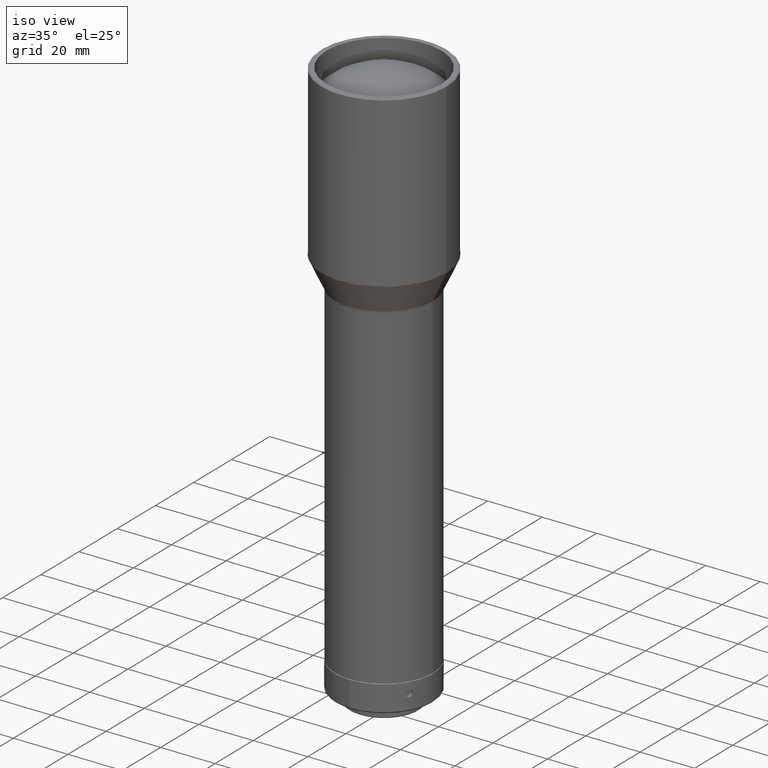
[diagram: clean part render]
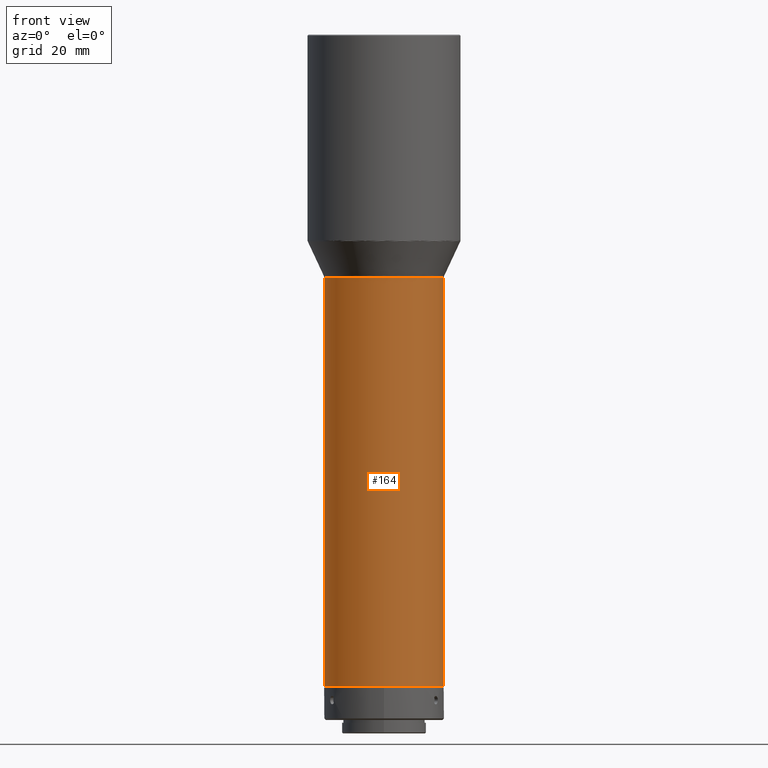
[diagram: tour spotlight — one face highlighted and labeled with its STEP entity id]
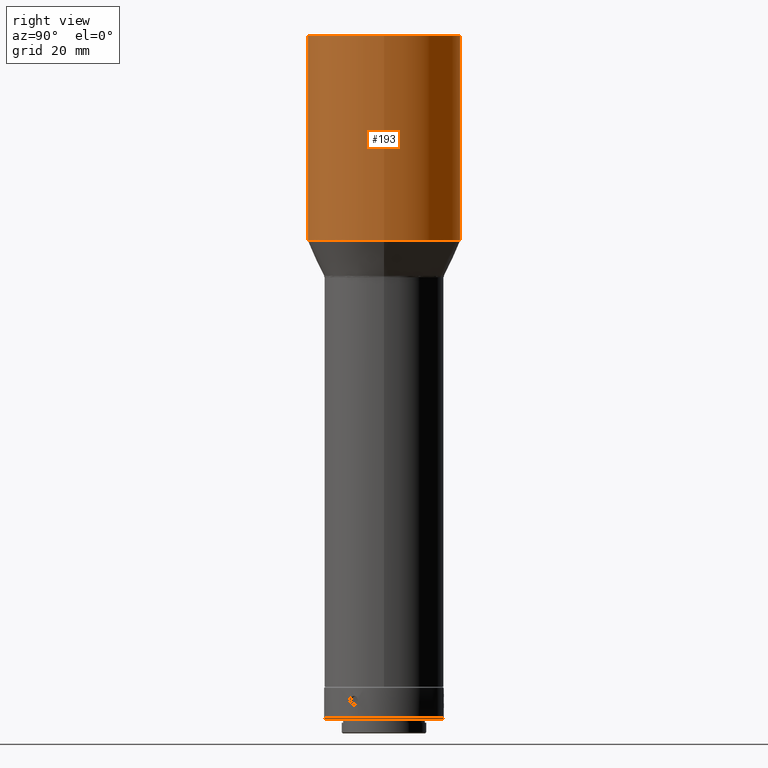
[diagram: tour spotlight — one face highlighted and labeled with its STEP entity id]
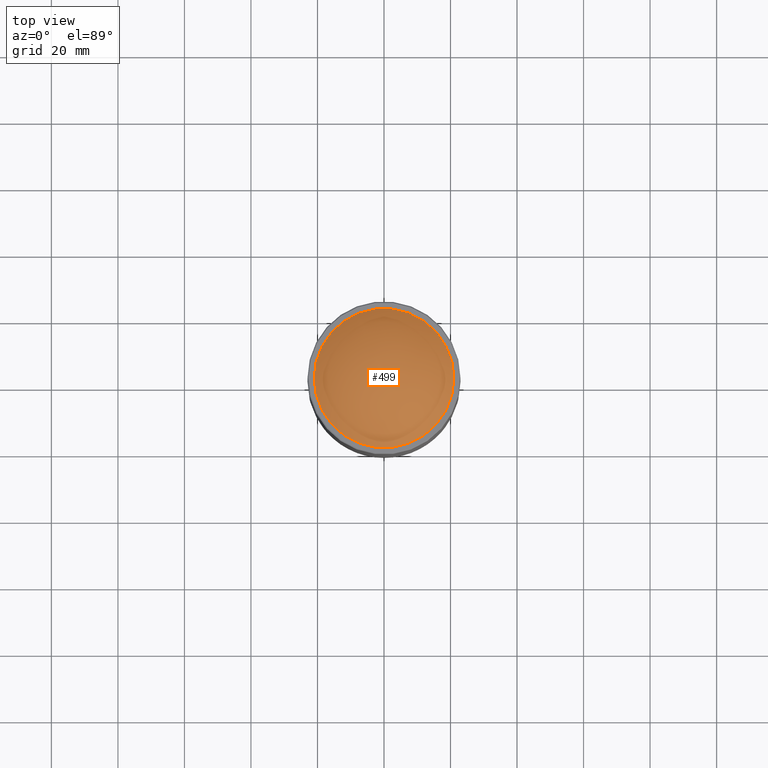
[diagram: tour spotlight — one face highlighted and labeled with its STEP entity id]
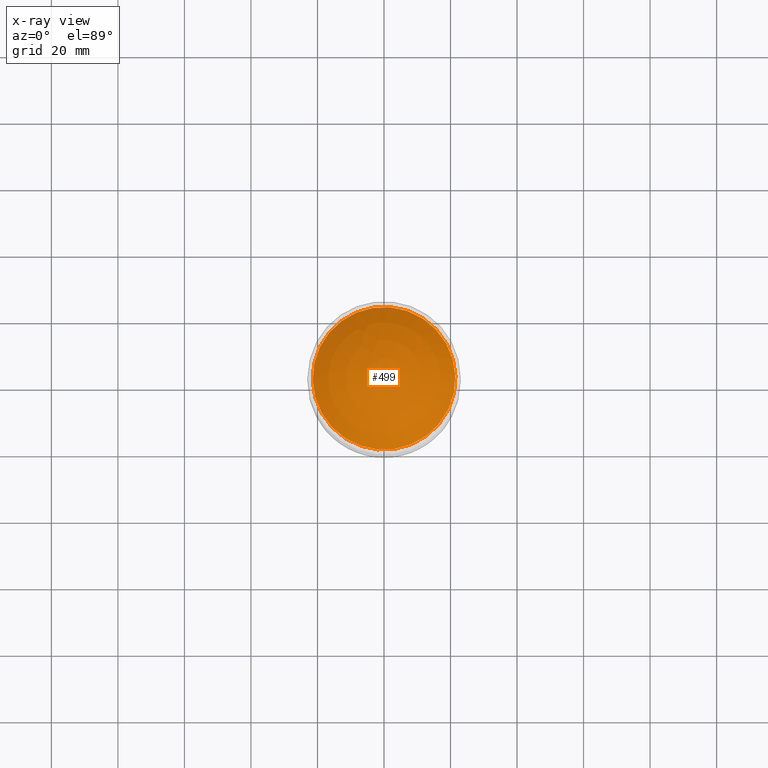
[diagram: x-ray of the same camera — body ghosted, this tour face saturated]
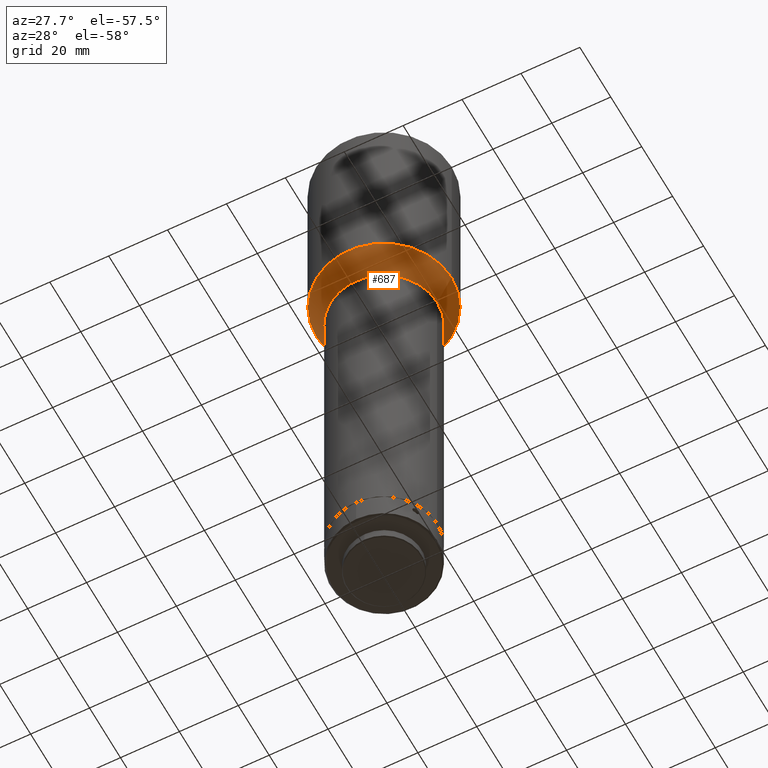
[diagram: tour spotlight — one face highlighted and labeled with its STEP entity id]
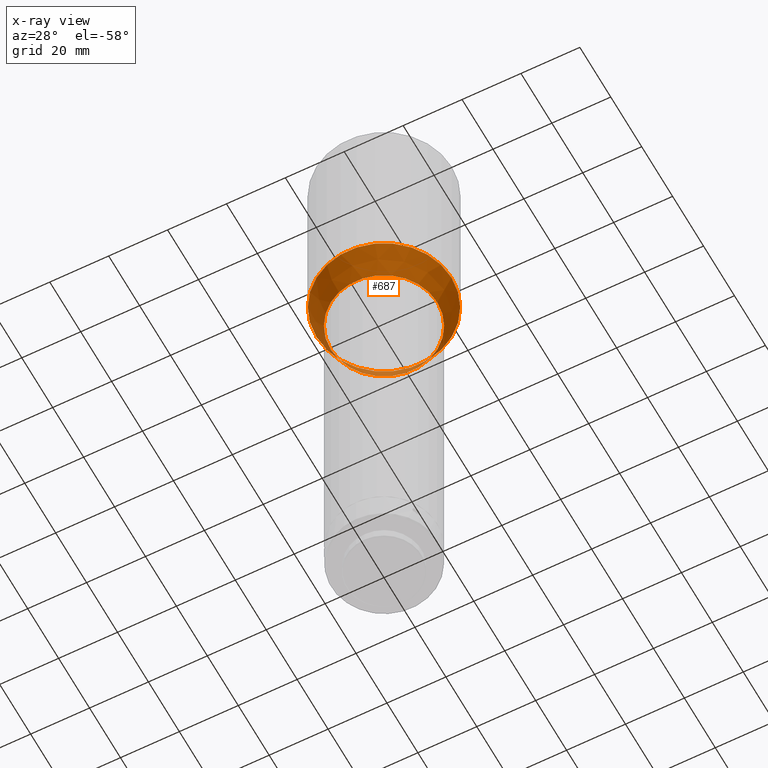
[diagram: x-ray of the same camera — body ghosted, this tour face saturated]
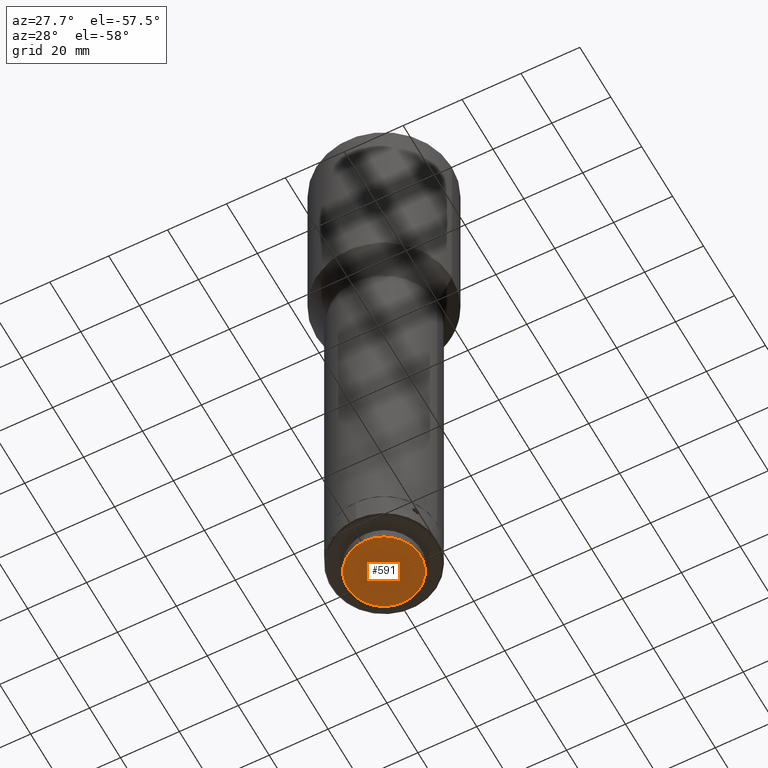
[diagram: tour spotlight — one face highlighted and labeled with its STEP entity id]
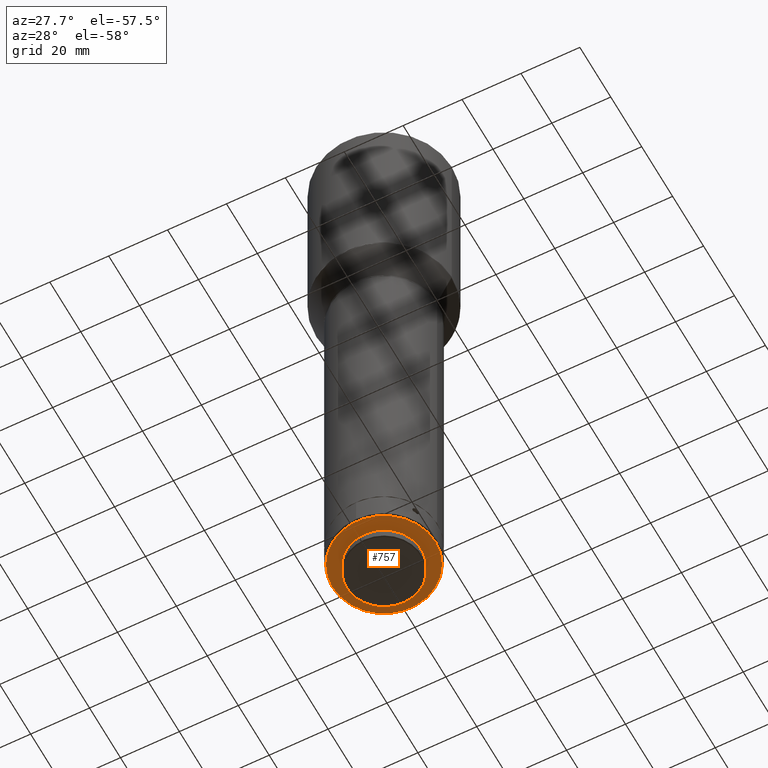
[diagram: tour spotlight — one face highlighted and labeled with its STEP entity id]
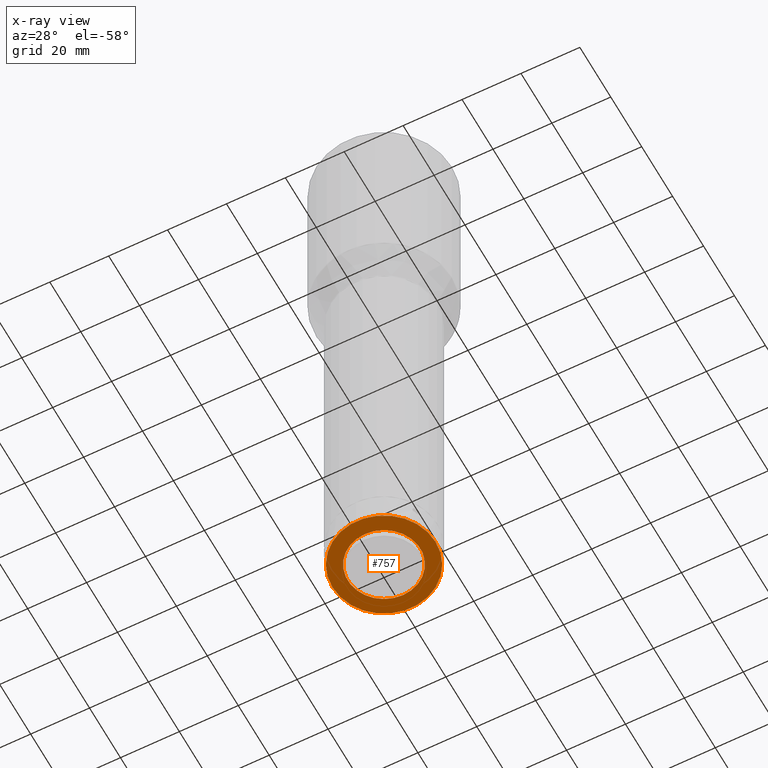
[diagram: x-ray of the same camera — body ghosted, this tour face saturated]
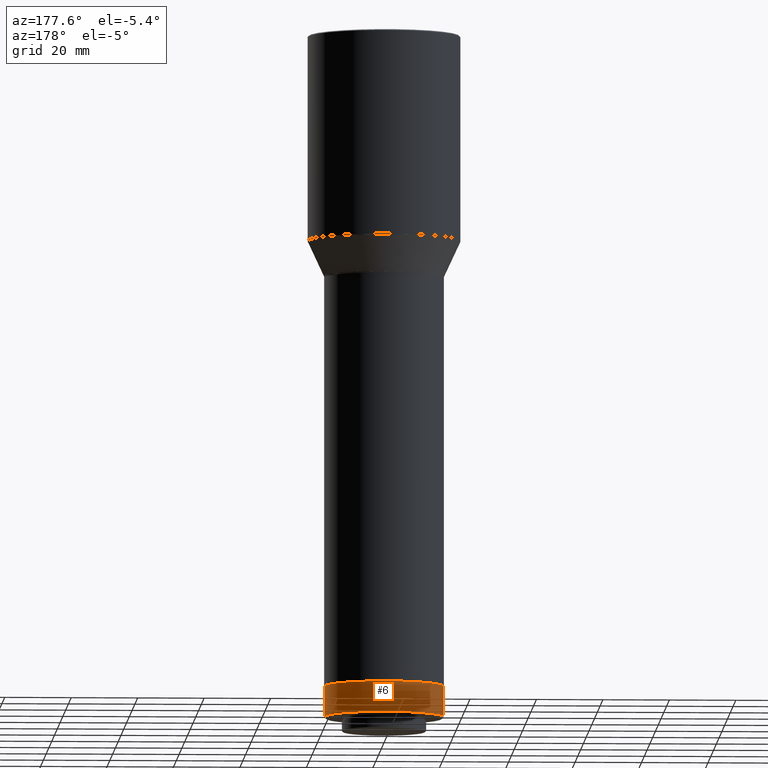
[diagram: tour spotlight — one face highlighted and labeled with its STEP entity id]
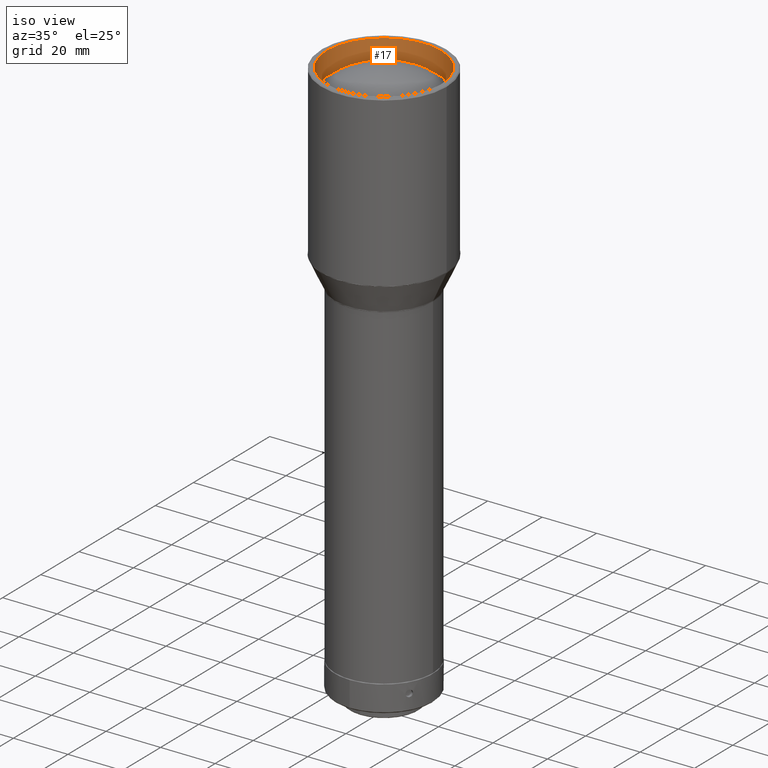
[diagram: tour spotlight — one face highlighted and labeled with its STEP entity id]
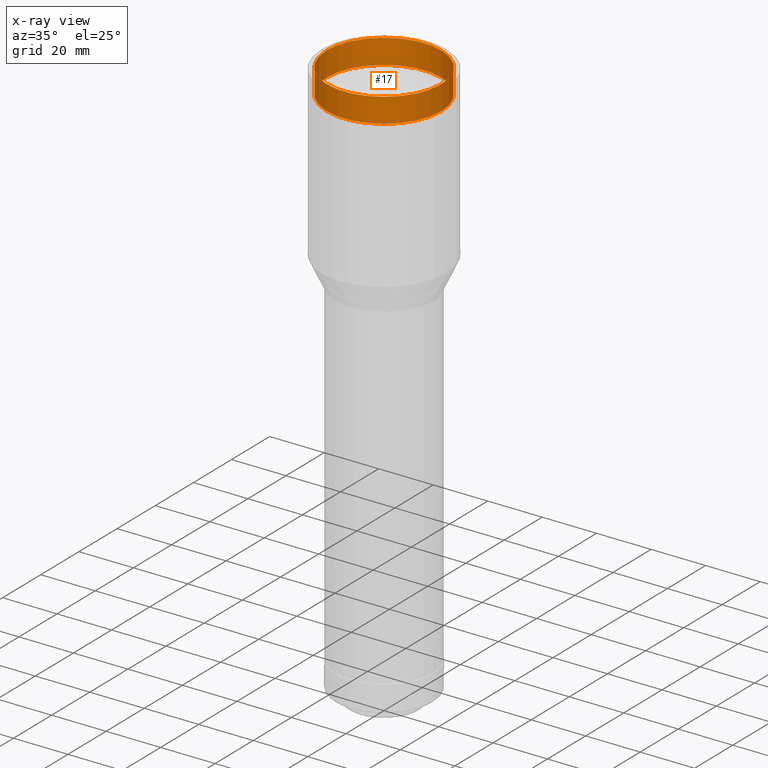
[diagram: x-ray of the same camera — body ghosted, this tour face saturated]
A machine part: a face-by-face anatomy tour. The part has 27 B-rep faces; the first image is the clean iso view, then the 8 largest visible faces are spotlighted one at a time (largest first), each with its STEP entity span.

Face 1 — front view, entity #164. In plain terms, the highlighted cylindrical surface (bore or boss wall) has radius 18 mm, axis along (0, -0, 1).
Definition (entity closure, byte-faithful):
#33 = CARTESIAN_POINT ( 'NONE',  ( 4.600448513594326693E-15, 2.912732588834946147E-14, -532.0000000000001137 ) ) ;
#39 = EDGE_LOOP ( 'NONE', ( #621 ) ) ;
#59 = EDGE_LOOP ( 'NONE', ( #551 ) ) ;
#63 = CARTESIAN_POINT ( 'NONE',  ( 18.00000000000000000, 3.013963042389634666E-14, -604.9442292651910975 ) ) ;
#116 = VERTEX_POINT ( 'NONE', #709 ) ;
#148 = DIRECTION ( 'NONE',  ( 1.110223024625165169E-16, -1.387778780781447216E-17, 1.000000000000000000 ) ) ;
#153 = DIRECTION ( 'NONE',  ( -1.110223024625165169E-16, 1.387778780781447216E-17, -1.000000000000000000 ) ) ;
#164 = ADVANCED_FACE ( 'NONE', ( #554, #616 ), #288, .T. ) ;
#209 = AXIS2_PLACEMENT_3D ( 'NONE', #415, #148, #789 ) ;
#288 = CYLINDRICAL_SURFACE ( 'NONE', #317, 18.00000000000000355 ) ;
#295 = DIRECTION ( 'NONE',  ( 1.000000000000000000, 0.000000000000000000, 0.000000000000000000 ) ) ;
#317 = AXIS2_PLACEMENT_3D ( 'NONE', #33, #565, #295 ) ;
#352 = CIRCLE ( 'NONE', #209, 18.00000000000000355 ) ;
#415 = CARTESIAN_POINT ( 'NONE',  ( -1.716869686162251538E-14, 3.184846906025154484E-14, -728.0790300000001025 ) ) ;
#424 = AXIS2_PLACEMENT_3D ( 'NONE', #475, #153, #606 ) ;
#475 = CARTESIAN_POINT ( 'NONE',  ( -3.497987770780852267E-15, 3.013963042389634666E-14, -604.9442292651910975 ) ) ;
#551 = ORIENTED_EDGE ( 'NONE', *, *, #699, .T. ) ;
#554 = FACE_OUTER_BOUND ( 'NONE', #39, .T. ) ;
#565 = DIRECTION ( 'NONE',  ( 1.110223024625165169E-16, -1.387778780781447216E-17, 1.000000000000000000 ) ) ;
#606 = DIRECTION ( 'NONE',  ( 1.000000000000000000, 0.000000000000000000, 0.000000000000000000 ) ) ;
#616 = FACE_OUTER_BOUND ( 'NONE', #59, .T. ) ;
#621 = ORIENTED_EDGE ( 'NONE', *, *, #656, .T. ) ;
#656 = EDGE_CURVE ( 'NONE', #116, #116, #352, .T. ) ;
#699 = EDGE_CURVE ( 'NONE', #822, #822, #782, .T. ) ;
#709 = CARTESIAN_POINT ( 'NONE',  ( 17.99999999999998579, 3.184846906025154484E-14, -728.0790300000001025 ) ) ;
#782 = CIRCLE ( 'NONE', #424, 18.00000000000000355 ) ;
#789 = DIRECTION ( 'NONE',  ( 1.000000000000000000, 0.000000000000000000, 0.000000000000000000 ) ) ;
#822 = VERTEX_POINT ( 'NONE', #63 ) ;

Face 2 — right view, entity #193. In plain terms, the highlighted cylindrical surface (bore or boss wall) has radius 23 mm, axis along (0, -0, 1).
Definition (entity closure, byte-faithful):
#8 = CIRCLE ( 'NONE', #114, 23.00000000000000000 ) ;
#47 = CARTESIAN_POINT ( 'NONE',  ( -23.00000000000000355, 3.509169801422339781E-14, -593.7783053373572102 ) ) ;
#83 = DIRECTION ( 'NONE',  ( -1.000000000000000000, 2.220446049250315053E-16, 0.000000000000000000 ) ) ;
#94 = FACE_OUTER_BOUND ( 'NONE', #674, .T. ) ;
#114 = AXIS2_PLACEMENT_3D ( 'NONE', #388, #644, #772 ) ;
#145 = CARTESIAN_POINT ( 'NONE',  ( -2.258321187191454181E-15, 2.998467210094767141E-14, -593.7783053373572102 ) ) ;
#193 = ADVANCED_FACE ( 'NONE', ( #94, #348 ), #792, .T. ) ;
#238 = CIRCLE ( 'NONE', #713, 23.00000000000000000 ) ;
#348 = FACE_OUTER_BOUND ( 'NONE', #589, .T. ) ;
#354 = EDGE_CURVE ( 'NONE', #490, #490, #8, .T. ) ;
#388 = CARTESIAN_POINT ( 'NONE',  ( 4.567141822855575468E-15, 2.913148922469180202E-14, -532.3000000000000682 ) ) ;
#409 = DIRECTION ( 'NONE',  ( -1.110223024625165169E-16, 1.387778780781447216E-17, -1.000000000000000000 ) ) ;
#490 = VERTEX_POINT ( 'NONE', #804 ) ;
#495 = CARTESIAN_POINT ( 'NONE',  ( 4.600448513594326693E-15, 2.912732588834946147E-14, -532.0000000000001137 ) ) ;
#561 = DIRECTION ( 'NONE',  ( 1.000000000000000000, 0.000000000000000000, 0.000000000000000000 ) ) ;
#589 = EDGE_LOOP ( 'NONE', ( #788 ) ) ;
#617 = EDGE_CURVE ( 'NONE', #691, #691, #238, .T. ) ;
#644 = DIRECTION ( 'NONE',  ( -1.110223024625165169E-16, 1.387778780781447216E-17, -1.000000000000000000 ) ) ;
#674 = EDGE_LOOP ( 'NONE', ( #712 ) ) ;
#678 = AXIS2_PLACEMENT_3D ( 'NONE', #495, #796, #561 ) ;
#691 = VERTEX_POINT ( 'NONE', #47 ) ;
#712 = ORIENTED_EDGE ( 'NONE', *, *, #617, .F. ) ;
#713 = AXIS2_PLACEMENT_3D ( 'NONE', #145, #409, #83 ) ;
#772 = DIRECTION ( 'NONE',  ( 1.000000000000000000, 0.000000000000000000, 0.000000000000000000 ) ) ;
#788 = ORIENTED_EDGE ( 'NONE', *, *, #354, .T. ) ;
#792 = CYLINDRICAL_SURFACE ( 'NONE', #678, 23.00000000000000000 ) ;
#796 = DIRECTION ( 'NONE',  ( 1.110223024625165169E-16, -1.387778780781447216E-17, 1.000000000000000000 ) ) ;
#804 = CARTESIAN_POINT ( 'NONE',  ( 23.00000000000000355, 2.913148922469180202E-14, -532.3000000000000682 ) ) ;

Face 3 — top view, entity #499. An x-ray twin of the same camera follows (body ghosted, this face saturated) — the face is partly hidden behind the body. In plain terms, the highlighted spherical surface has radius 31.2095 mm.
Definition (entity closure, byte-faithful):
#65 = SPHERICAL_SURFACE ( 'NONE', #550, 31.20951493132240273 ) ;
#202 = DIRECTION ( 'NONE',  ( 4.665676044949140993E-17, 1.934749774458438248E-17, 1.000000000000000000 ) ) ;
#257 = FACE_OUTER_BOUND ( 'NONE', #571, .T. ) ;
#312 = AXIS2_PLACEMENT_3D ( 'NONE', #334, #482, #776 ) ;
#322 = DIRECTION ( 'NONE',  ( -0.3830490080632378835, 0.9237280213470681067, 0.000000000000000000 ) ) ;
#334 = CARTESIAN_POINT ( 'NONE',  ( 0.000000000000000000, 2.081668171172168513E-14, -541.0000000000001137 ) ) ;
#379 = CARTESIAN_POINT ( 'NONE',  ( 8.217209483082314136, -19.81591518845250377, -541.0000000000001137 ) ) ;
#397 = CARTESIAN_POINT ( 'NONE',  ( 0.000000000000000000, 1.387778780781445676E-14, -563.6680567275548128 ) ) ;
#458 = VERTEX_POINT ( 'NONE', #379 ) ;
#482 = DIRECTION ( 'NONE',  ( -1.232595164407830946E-32, -1.318609258053555361E-16, -1.000000000000000000 ) ) ;
#499 = ADVANCED_FACE ( 'NONE', ( #257 ), #65, .T. ) ;
#550 = AXIS2_PLACEMENT_3D ( 'NONE', #397, #202, #322 ) ;
#571 = EDGE_LOOP ( 'NONE', ( #575 ) ) ;
#575 = ORIENTED_EDGE ( 'NONE', *, *, #662, .F. ) ;
#662 = EDGE_CURVE ( 'NONE', #458, #458, #817, .T. ) ;
#776 = DIRECTION ( 'NONE',  ( 0.3830490080632379390, -0.9237280213470682178, 0.000000000000000000 ) ) ;
#817 = CIRCLE ( 'NONE', #312, 21.45211006975307555 ) ;

Face 4 — auxiliary view, entity #687. An x-ray twin of the same camera follows (body ghosted, this face saturated) — the face is partly hidden behind the body. In plain terms, the highlighted conical surface has half-angle 25 deg.
Definition (entity closure, byte-faithful):
#16 = FACE_BOUND ( 'NONE', #528, .T. ) ;
#18 = CONICAL_SURFACE ( 'NONE', #497, 22.90630778703662429, 0.4363323129985753890 ) ;
#136 = EDGE_LOOP ( 'NONE', ( #162 ) ) ;
#143 = DIRECTION ( 'NONE',  ( 1.000000000000000000, -2.220446049250314067E-16, 0.000000000000000000 ) ) ;
#162 = ORIENTED_EDGE ( 'NONE', *, *, #218, .T. ) ;
#174 = CARTESIAN_POINT ( 'NONE',  ( 22.90630778703662784, 2.490431504464409916E-14, -594.2009235990979050 ) ) ;
#205 = CARTESIAN_POINT ( 'NONE',  ( -1.734723475976807094E-15, 2.999053710750781774E-14, -594.2009235990979050 ) ) ;
#217 = DIRECTION ( 'NONE',  ( 0.000000000000000000, -0.000000000000000000, 1.000000000000000000 ) ) ;
#218 = EDGE_CURVE ( 'NONE', #346, #346, #629, .T. ) ;
#273 = CARTESIAN_POINT ( 'NONE',  ( -3.451067718299677672E-15, 3.013376541733620033E-14, -604.5216110034504027 ) ) ;
#286 = DIRECTION ( 'NONE',  ( 1.000000000000000000, -2.220446049250314560E-16, 0.000000000000000000 ) ) ;
#314 = EDGE_CURVE ( 'NONE', #567, #567, #664, .T. ) ;
#342 = DIRECTION ( 'NONE',  ( 1.000000000000000000, 0.000000000000000000, 0.000000000000000000 ) ) ;
#346 = VERTEX_POINT ( 'NONE', #174 ) ;
#422 = ORIENTED_EDGE ( 'NONE', *, *, #314, .T. ) ;
#479 = FACE_OUTER_BOUND ( 'NONE', #136, .T. ) ;
#497 = AXIS2_PLACEMENT_3D ( 'NONE', #205, #217, #342 ) ;
#528 = EDGE_LOOP ( 'NONE', ( #422 ) ) ;
#548 = AXIS2_PLACEMENT_3D ( 'NONE', #273, #601, #143 ) ;
#567 = VERTEX_POINT ( 'NONE', #732 ) ;
#601 = DIRECTION ( 'NONE',  ( 1.110223024625165169E-16, -1.387778780781447216E-17, 1.000000000000000000 ) ) ;
#629 = CIRCLE ( 'NONE', #786, 22.90630778703663140 ) ;
#664 = CIRCLE ( 'NONE', #548, 18.09369221296335795 ) ;
#687 = ADVANCED_FACE ( 'NONE', ( #16, #479 ), #18, .T. ) ;
#732 = CARTESIAN_POINT ( 'NONE',  ( 18.09369221296335439, 2.611615867827363529E-14, -604.5216110034504027 ) ) ;
#740 = CARTESIAN_POINT ( 'NONE',  ( -2.305241239672586178E-15, 2.999053710750781774E-14, -594.2009235990979050 ) ) ;
#786 = AXIS2_PLACEMENT_3D ( 'NONE', #740, #794, #286 ) ;
#794 = DIRECTION ( 'NONE',  ( -1.110223024625165169E-16, 1.387778780781447216E-17, -1.000000000000000000 ) ) ;

Face 5 — auxiliary view, entity #591. In plain terms, the highlighted planar face has unit normal (-0, -0, 1).
Definition (entity closure, byte-faithful):
#128 = ORIENTED_EDGE ( 'NONE', *, *, #283, .F. ) ;
#163 = CARTESIAN_POINT ( 'NONE',  ( -1.647987302177966740E-14, -12.39999999999999325, -742.0790300000003299 ) ) ;
#204 = EDGE_LOOP ( 'NONE', ( #128 ) ) ;
#251 = CARTESIAN_POINT ( 'NONE',  ( -1.486715490318257896E-14, 10.75000000000000178, -742.0790300000003299 ) ) ;
#266 = DIRECTION ( 'NONE',  ( 0.000000000000000000, -1.000000000000000000, 0.000000000000000000 ) ) ;
#283 = EDGE_CURVE ( 'NONE', #611, #611, #502, .T. ) ;
#341 = AXIS2_PLACEMENT_3D ( 'NONE', #517, #684, #266 ) ;
#402 = DIRECTION ( 'NONE',  ( 0.000000000000000000, -1.000000000000000000, -6.938893903907246867E-17 ) ) ;
#465 = AXIS2_PLACEMENT_3D ( 'NONE', #251, #667, #402 ) ;
#502 = CIRCLE ( 'NONE', #341, 12.39999999999999858 ) ;
#517 = CARTESIAN_POINT ( 'NONE',  ( -1.647987302177966740E-14, 4.421370291414830163E-15, -742.0790300000003299 ) ) ;
#576 = FACE_OUTER_BOUND ( 'NONE', #204, .T. ) ;
#591 = ADVANCED_FACE ( 'NONE', ( #576 ), #818, .F. ) ;
#611 = VERTEX_POINT ( 'NONE', #163 ) ;
#667 = DIRECTION ( 'NONE',  ( -1.540743955509788682E-32, -6.938893903907246867E-17, 1.000000000000000000 ) ) ;
#684 = DIRECTION ( 'NONE',  ( -5.970394768389978114E-31, -4.370956789862825094E-15, 1.000000000000000000 ) ) ;
#818 = PLANE ( 'NONE',  #465 ) ;

Face 6 — auxiliary view, entity #757. An x-ray twin of the same camera follows (body ghosted, this face saturated) — the face is partly hidden behind the body. In plain terms, the highlighted planar face has unit normal (-0, -0, 1).
Definition (entity closure, byte-faithful):
#29 = CIRCLE ( 'NONE', #638, 12.29999999999998828 ) ;
#36 = VERTEX_POINT ( 'NONE', #300 ) ;
#91 = DIRECTION ( 'NONE',  ( 0.000000000000000000, -1.000000000000000000, -6.938893903907246867E-17 ) ) ;
#93 = EDGE_CURVE ( 'NONE', #36, #36, #739, .T. ) ;
#161 = DIRECTION ( 'NONE',  ( 0.000000000000000000, -0.000000000000000000, 1.000000000000000000 ) ) ;
#166 = ORIENTED_EDGE ( 'NONE', *, *, #726, .F. ) ;
#220 = FACE_OUTER_BOUND ( 'NONE', #803, .T. ) ;
#229 = DIRECTION ( 'NONE',  ( 1.000000000000000000, 0.000000000000000000, 0.000000000000000000 ) ) ;
#255 = VERTEX_POINT ( 'NONE', #304 ) ;
#272 = CARTESIAN_POINT ( 'NONE',  ( -1.606064465465462856E-14, 2.853344180011465672E-15, -738.0790300000003299 ) ) ;
#300 = CARTESIAN_POINT ( 'NONE',  ( 17.49999999999993960, 2.818649710491931896E-15, -738.0790300000003299 ) ) ;
#304 = CARTESIAN_POINT ( 'NONE',  ( -1.606064465465462856E-14, -12.29999999999998472, -738.0790300000003299 ) ) ;
#315 = EDGE_LOOP ( 'NONE', ( #166 ) ) ;
#333 = CARTESIAN_POINT ( 'NONE',  ( -1.469507033436568159E-14, 12.29999999999999538, -738.0790300000003299 ) ) ;
#418 = ORIENTED_EDGE ( 'NONE', *, *, #93, .F. ) ;
#426 = AXIS2_PLACEMENT_3D ( 'NONE', #733, #161, #229 ) ;
#471 = DIRECTION ( 'NONE',  ( -1.540743955509788682E-32, -6.938893903907246867E-17, 1.000000000000000000 ) ) ;
#483 = AXIS2_PLACEMENT_3D ( 'NONE', #333, #471, #91 ) ;
#638 = AXIS2_PLACEMENT_3D ( 'NONE', #272, #723, #727 ) ;
#723 = DIRECTION ( 'NONE',  ( 1.540743955509788956E-32, 6.938893903907246867E-17, -1.000000000000000000 ) ) ;
#726 = EDGE_CURVE ( 'NONE', #255, #255, #29, .T. ) ;
#727 = DIRECTION ( 'NONE',  ( 0.000000000000000000, -1.000000000000000000, 0.000000000000000000 ) ) ;
#729 = PLANE ( 'NONE',  #483 ) ;
#733 = CARTESIAN_POINT ( 'NONE',  ( -1.561251128379126385E-14, 2.818649710491931896E-15, -738.0790300000003299 ) ) ;
#739 = CIRCLE ( 'NONE', #426, 17.49999999999995381 ) ;
#757 = ADVANCED_FACE ( 'NONE', ( #790, #220 ), #729, .F. ) ;
#790 = FACE_BOUND ( 'NONE', #315, .T. ) ;
#803 = EDGE_LOOP ( 'NONE', ( #418 ) ) ;

Face 7 — auxiliary view, entity #6. In plain terms, the highlighted cylindrical surface (bore or boss wall) has radius 18 mm, axis along (-0, -0, 1).
Definition (entity closure, byte-faithful):
#5 = CARTESIAN_POINT ( 'NONE',  ( 15.89389229175796814, -8.450273022655000688, -730.9863543457099695 ) ) ;
#6 = ADVANCED_FACE ( 'NONE', ( #807, #318, #625, #48, #584 ), #824, .T. ) ;
#9 = CARTESIAN_POINT ( 'NONE',  ( -16.10583412538212400, -8.037789467238036778, -731.4490236262734015 ) ) ;
#13 = CARTESIAN_POINT ( 'NONE',  ( -15.42341458922626529, -9.281228838265851877, -730.8612451631306612 ) ) ;
#20 = DIRECTION ( 'NONE',  ( -1.540743955509788956E-32, -6.938893903907246867E-17, 1.000000000000000000 ) ) ;
#23 = AXIS2_PLACEMENT_3D ( 'NONE', #583, #453, #643 ) ;
#27 = CARTESIAN_POINT ( 'NONE',  ( -15.89389197149333022, -8.450273622267824081, -733.1717060156610160 ) ) ;
#31 = CARTESIAN_POINT ( 'NONE',  ( -15.42218430790377326, -9.283256999105446994, -733.2960453772540177 ) ) ;
#40 = CARTESIAN_POINT ( 'NONE',  ( -15.01384736159115185, -9.929166118684825904, -732.7090376652779469 ) ) ;
#43 = CARTESIAN_POINT ( 'NONE',  ( -16.17582393315549183, -7.895740629197098848, -732.2442292392654508 ) ) ;
#46 = CARTESIAN_POINT ( 'NONE',  ( 1.091755923036179521, 17.96697055881273997, -732.7094559346066944 ) ) ;
#48 = FACE_BOUND ( 'NONE', #356, .T. ) ;
#50 = CARTESIAN_POINT ( 'NONE',  ( -1.250000303081713948, 17.95654474675725609, -731.9138332969531575 ) ) ;
#55 = CARTESIAN_POINT ( 'NONE',  ( 15.19139366244525036, -9.655838794076609943, -733.0801266175251385 ) ) ;
#60 = AXIS2_PLACEMENT_3D ( 'NONE', #252, #305, #813 ) ;
#62 = CARTESIAN_POINT ( 'NONE',  ( 0.7665048592950598483, 17.98405222760582589, -733.0801266175249111 ) ) ;
#64 = ORIENTED_EDGE ( 'NONE', *, *, #477, .T. ) ;
#66 = AXIS2_PLACEMENT_3D ( 'NONE', #275, #20, #336 ) ;
#70 = EDGE_LOOP ( 'NONE', ( #64 ) ) ;
#79 = EDGE_LOOP ( 'NONE', ( #262 ) ) ;
#80 = CARTESIAN_POINT ( 'NONE',  ( -15.67042028344147298, -8.858020202463199766, -730.8291429727667037 ) ) ;
#105 = CARTESIAN_POINT ( 'NONE',  ( -14.92582410297037931, -10.06080388672737591, -732.2442312896946532 ) ) ;
#110 = CARTESIAN_POINT ( 'NONE',  ( -1.217386932848452119, 17.95889559784532707, -731.7514067959092472 ) ) ;
#115 = CARTESIAN_POINT ( 'NONE',  ( 1.217464335294298206, 17.95889008224764183, -731.7517309706282731 ) ) ;
#121 = CARTESIAN_POINT ( 'NONE',  ( -1.091986416381339753, 17.96695628302230574, -732.7090376652781742 ) ) ;
#123 = ORIENTED_EDGE ( 'NONE', *, *, #366, .T. ) ;
#127 = CARTESIAN_POINT ( 'NONE',  ( -0.6287950393457226728, 17.98965100100357972, -730.9863543457100832 ) ) ;
#134 = CARTESIAN_POINT ( 'NONE',  ( -16.17582393315550959, -7.895740629197073090, -732.0790300000005573 ) ) ;
#138 = CIRCLE ( 'NONE', #23, 17.99999999999998579 ) ;
#160 = CARTESIAN_POINT ( 'NONE',  ( -16.06471677035730394, -8.120254879791541924, -732.8469501707627387 ) ) ;
#170 = CARTESIAN_POINT ( 'NONE',  ( -16.16155305345584026, -7.925160248036697830, -732.4066550172560710 ) ) ;
#173 = CARTESIAN_POINT ( 'NONE',  ( -1.091756721072190350, 17.96697050981528676, -731.4486054048880987 ) ) ;
#176 = CARTESIAN_POINT ( 'NONE',  ( 15.89407479287068981, -8.449912178065833501, -733.1713261720311721 ) ) ;
#181 = CARTESIAN_POINT ( 'NONE',  ( 16.17582406642456405, -7.895740356171740082, -731.9138332969530438 ) ) ;
#182 = VERTEX_POINT ( 'NONE', #134 ) ;
#186 = CARTESIAN_POINT ( 'NONE',  ( -1.249999696914090741, 17.95654478895409412, -732.2442312896945396 ) ) ;
#190 = CARTESIAN_POINT ( 'NONE',  ( 15.74948724688810309, -8.716454428236477980, -730.8612451631305476 ) ) ;
#215 = CARTESIAN_POINT ( 'NONE',  ( -15.26509725241258941, -9.539377978348534626, -730.9863543457101969 ) ) ;
#227 = CARTESIAN_POINT ( 'NONE',  ( -15.26487600238792020, -9.539716451242940209, -733.1713261720310584 ) ) ;
#231 = VERTEX_POINT ( 'NONE', #615 ) ;
#237 = CARTESIAN_POINT ( 'NONE',  ( 14.92582393315538702, -10.06080413865835688, -732.2442292392659056 ) ) ;
#239 = VERTEX_POINT ( 'NONE', #423 ) ;
#249 = CARTESIAN_POINT ( 'NONE',  ( 1.249999999999976241, 17.95654476785551878, -731.9138307607348679 ) ) ;
#252 = CARTESIAN_POINT ( 'NONE',  ( -1.606064465465462856E-14, 2.159454789620740073E-15, -728.0790300000003299 ) ) ;
#254 = CARTESIAN_POINT ( 'NONE',  ( 14.92582393315536571, -10.06080413865837642, -732.0790300000004436 ) ) ;
#259 = CARTESIAN_POINT ( 'NONE',  ( 15.06517464280616814, -9.851590384043115378, -731.3103988769152011 ) ) ;
#262 = ORIENTED_EDGE ( 'NONE', *, *, #775, .T. ) ;
#271 = CARTESIAN_POINT ( 'NONE',  ( 15.95789887597210566, -8.328212755427102820, -731.0779339321262569 ) ) ;
#275 = CARTESIAN_POINT ( 'NONE',  ( -1.606064465465462856E-14, 2.180271471332462941E-15, -728.3790300000002844 ) ) ;
#276 = CARTESIAN_POINT ( 'NONE',  ( -16.17582393315552380, -7.895740629197049110, -731.9138307607353227 ) ) ;
#289 = CARTESIAN_POINT ( 'NONE',  ( -15.06517510034525387, -9.851589683955895183, -732.8476621668028201 ) ) ;
#303 = CARTESIAN_POINT ( 'NONE',  ( 16.06471715756158503, -8.120254114432414738, -731.3111108980901918 ) ) ;
#305 = DIRECTION ( 'NONE',  ( -1.540743955509788956E-32, -6.938893903907246867E-17, 1.000000000000000000 ) ) ;
#308 = CARTESIAN_POINT ( 'NONE',  ( 1.091987193791632338, 17.96695623533827302, -731.4490236262731742 ) ) ;
#313 = CARTESIAN_POINT ( 'NONE',  ( 14.94416663059029737, -10.03373538488430050, -732.4066550172562984 ) ) ;
#318 = FACE_OUTER_BOUND ( 'NONE', #70, .T. ) ;
#320 = CARTESIAN_POINT ( 'NONE',  ( 15.75062854503690701, -8.714374892937591710, -733.2960453772537903 ) ) ;
#323 = CARTESIAN_POINT ( 'NONE',  ( 15.19026408422139163, -9.657597898278536874, -731.0798605139834763 ) ) ;
#325 = CARTESIAN_POINT ( 'NONE',  ( 0.1639396191514255752, 17.99999215467086344, -730.8291429727665900 ) ) ;
#328 = CARTESIAN_POINT ( 'NONE',  ( 15.42218411498783937, -9.283257321960576292, -730.8620146990361945 ) ) ;
#336 = DIRECTION ( 'NONE',  ( -1.000000000000000000, 1.110223024625155185E-16, 0.000000000000000000 ) ) ;
#343 = CARTESIAN_POINT ( 'NONE',  ( 15.01384693159020323, -9.929166768100159857, -731.4490236262732878 ) ) ;
#350 = CARTESIAN_POINT ( 'NONE',  ( -18.00000000000000355, 4.178672915657740375E-15, -728.3790300000002844 ) ) ;
#356 = EDGE_LOOP ( 'NONE', ( #123 ) ) ;
#357 = CARTESIAN_POINT ( 'NONE',  ( -15.01397453000996052, -9.928974310108310775, -731.4486054048879851 ) ) ;
#360 = EDGE_LOOP ( 'NONE', ( #516 ) ) ;
#361 = CARTESIAN_POINT ( 'NONE',  ( -15.74948706598767956, -8.716454752419849683, -733.2968149096974457 ) ) ;
#364 = CARTESIAN_POINT ( 'NONE',  ( -15.50648075862407005, -9.141971788833750168, -733.3289170273645823 ) ) ;
#366 = EDGE_CURVE ( 'NONE', #671, #671, #663, .T. ) ;
#369 = B_SPLINE_CURVE_WITH_KNOTS ( 'NONE', 3,
 ( #604, #276, #600, #9, #406, #785, #539, #718, #80, #602, #13, #215, #724, #795, #357, #745, #800, #105, #559, #40, #289, #680, #227, #31, #364, #793, #361, #27, #436, #160, #620, #170, #43, #432 ),
 .UNSPECIFIED., .T., .F.,
 ( 4, 2, 2, 2, 2, 2, 2, 2, 2, 2, 2, 2, 2, 2, 2, 2, 4 ),
 ( 0.000000000000000000, 0.0004885519476059276911, 0.0009771038952118553823, 0.001465655842817782965, 0.001954207790423710765, 0.002442759738029640949, 0.002931311685635571134, 0.003419863633241501319, 0.003908415580847431937, 0.004396967528453362556, 0.004885519476059292307, 0.005374071423665222925, 0.005862623371271152677, 0.006351175318877083295, 0.006839727266483013046, 0.007328279214088943665, 0.007816831161694874283 ),
 .UNSPECIFIED. ) ;
#370 = CARTESIAN_POINT ( 'NONE',  ( -0.1639394304986266926, 17.99999215467990865, -733.3289170273643549 ) ) ;
#373 = CARTESIAN_POINT ( 'NONE',  ( 0.9991402188564519893, 17.97261914514088943, -731.3103988769150874 ) ) ;
#377 = EDGE_CURVE ( 'NONE', #239, #239, #536, .T. ) ;
#378 = CARTESIAN_POINT ( 'NONE',  ( -0.6291987904827415212, 17.98962862930883944, -733.1713261720310584 ) ) ;
#384 = CARTESIAN_POINT ( 'NONE',  ( -0.7685923121488548171, 17.98395356874549478, -733.0782000424842408 ) ) ;
#390 = CARTESIAN_POINT ( 'NONE',  ( -0.9991393837938944422, 17.97261919133771002, -732.8476621668031612 ) ) ;
#406 = CARTESIAN_POINT ( 'NONE',  ( -16.06431486166297162, -8.121028761097685233, -731.3103988769152011 ) ) ;
#416 = CARTESIAN_POINT ( 'NONE',  ( 14.92582393315534262, -10.06080413865839773, -731.9138307607349816 ) ) ;
#423 = CARTESIAN_POINT ( 'NONE',  ( 1.249999999999976241, 17.95654476785552234, -732.0790300000003299 ) ) ;
#432 = CARTESIAN_POINT ( 'NONE',  ( -16.17582393315550959, -7.895740629197074867, -732.0790300000004436 ) ) ;
#435 = CARTESIAN_POINT ( 'NONE',  ( -0.7665056236649040455, 17.98405219532854105, -731.0779339321261432 ) ) ;
#436 = CARTESIAN_POINT ( 'NONE',  ( -15.95789852174032220, -8.328213433529157328, -733.0801266175251385 ) ) ;
#439 = CARTESIAN_POINT ( 'NONE',  ( 15.01397497146081861, -9.928973643487816858, -732.7094559346068081 ) ) ;
#444 = CARTESIAN_POINT ( 'NONE',  ( -1.217463806281661176, 17.95889011854547235, -732.4063308894955071 ) ) ;
#451 = CARTESIAN_POINT ( 'NONE',  ( -1.000012230497488774, 17.97258022027629210, -731.3111108980904191 ) ) ;
#453 = DIRECTION ( 'NONE',  ( -1.540743955509788956E-32, -6.938893903907246867E-17, 1.000000000000000000 ) ) ;
#477 = EDGE_CURVE ( 'NONE', #231, #231, #138, .T. ) ;
#501 = VERTEX_POINT ( 'NONE', #350 ) ;
#505 = CARTESIAN_POINT ( 'NONE',  ( 15.95885680708788357, -8.326356316898312571, -733.0782000424842408 ) ) ;
#508 = CARTESIAN_POINT ( 'NONE',  ( 16.17582379988432706, -7.895740902226661362, -732.2442312896943122 ) ) ;
#513 = CARTESIAN_POINT ( 'NONE',  ( -0.3260726576622090533, 17.99768326650238848, -730.8612451631308886 ) ) ;
#516 = ORIENTED_EDGE ( 'NONE', *, *, #377, .T. ) ;
#518 = CARTESIAN_POINT ( 'NONE',  ( 0.3260722864606610538, 17.99768327192968798, -733.2968149096973320 ) ) ;
#524 = CARTESIAN_POINT ( 'NONE',  ( 15.26487564935871433, -9.539717018441049134, -730.9867341845231294 ) ) ;
#526 = CARTESIAN_POINT ( 'NONE',  ( 15.06470539628269378, -9.852325387835479731, -732.8469501707628524 ) ) ;
#536 = B_SPLINE_CURVE_WITH_KNOTS ( 'NONE', 3,
 ( #580, #249, #115, #308, #373, #574, #753, #743, #325, #633, #513, #127, #435, #451, #173, #110, #50, #186, #444, #121, #390, #384, #378, #700, #370, #636, #518, #641, #62, #827, #46, #587, #570, #809 ),
 .UNSPECIFIED., .T., .F.,
 ( 4, 2, 2, 2, 2, 2, 2, 2, 2, 2, 2, 2, 2, 2, 2, 2, 4 ),
 ( 0.000000000000000000, 0.0004885519476059279080, 0.0009771038952118558159, 0.001465655842817783616, 0.001954207790423711632, 0.002442759738029639648, 0.002931311685635567231, 0.003419863633241495247, 0.003908415580847423264, 0.004396967528453351280, 0.004885519476059279297, 0.005374071423665207313, 0.005862623371271134462, 0.006351175318877062478, 0.006839727266482990495, 0.007328279214088918511, 0.007816831161694846528 ),
 .UNSPECIFIED. ) ;
#539 = CARTESIAN_POINT ( 'NONE',  ( -15.89407510756410069, -8.449911588734549284, -730.9867341845230158 ) ) ;
#559 = CARTESIAN_POINT ( 'NONE',  ( -14.94412316329297852, -10.03379964370063782, -732.4063308894956208 ) ) ;
#570 = CARTESIAN_POINT ( 'NONE',  ( 1.249999999999976463, 17.95654476785553300, -732.2442292392656782 ) ) ;
#574 = CARTESIAN_POINT ( 'NONE',  ( 0.7685930773333780053, 17.98395353626938942, -731.0798605139834763 ) ) ;
#580 = CARTESIAN_POINT ( 'NONE',  ( 1.249999999999976463, 17.95654476785552589, -732.0790300000003299 ) ) ;
#583 = CARTESIAN_POINT ( 'NONE',  ( -1.606064465465462856E-14, 2.818649710491925191E-15, -737.5790300000002162 ) ) ;
#584 = FACE_BOUND ( 'NONE', #79, .T. ) ;
#586 = CIRCLE ( 'NONE', #66, 17.99999999999998579 ) ;
#587 = CARTESIAN_POINT ( 'NONE',  ( 1.217386422865432749, 17.95889563292107027, -732.4066550172558436 ) ) ;
#595 = CARTESIAN_POINT ( 'NONE',  ( 16.10583377797238214, -8.037790164337415888, -732.7090376652778332 ) ) ;
#599 = CARTESIAN_POINT ( 'NONE',  ( 15.66957017123609930, -8.859523938431864920, -730.8289176239676408 ) ) ;
#600 = CARTESIAN_POINT ( 'NONE',  ( -16.16158720264612825, -7.925089998557203863, -731.7517309706285005 ) ) ;
#602 = CARTESIAN_POINT ( 'NONE',  ( -15.50735788173646412, -9.140483865457362356, -730.8289176239674134 ) ) ;
#603 = EDGE_CURVE ( 'NONE', #501, #501, #586, .T. ) ;
#604 = CARTESIAN_POINT ( 'NONE',  ( -16.17582393315550959, -7.895740629197074867, -732.0790300000004436 ) ) ;
#615 = CARTESIAN_POINT ( 'NONE',  ( -1.606064465465462856E-14, -17.99999999999998224, -737.5790300000002162 ) ) ;
#620 = CARTESIAN_POINT ( 'NONE',  ( -16.10573089449705719, -8.037996915324859160, -732.7094559346073765 ) ) ;
#625 = FACE_BOUND ( 'NONE', #360, .T. ) ;
#627 = CARTESIAN_POINT ( 'NONE',  ( 16.16155327807070208, -7.925159788840830721, -731.7514067959092472 ) ) ;
#633 = CARTESIAN_POINT ( 'NONE',  ( -0.1622122895000278064, 18.00000780388928590, -730.8289176239677545 ) ) ;
#636 = CARTESIAN_POINT ( 'NONE',  ( 0.1622121008445601420, 18.00000780388024424, -733.3291423759027339 ) ) ;
#641 = CARTESIAN_POINT ( 'NONE',  ( 0.6287943599331876632, 17.98965102345266942, -733.1717060156609023 ) ) ;
#643 = DIRECTION ( 'NONE',  ( 0.000000000000000000, -1.000000000000000000, 0.000000000000000000 ) ) ;
#652 = CARTESIAN_POINT ( 'NONE',  ( 14.94412286735160045, -10.03380008369035359, -731.7517309706286142 ) ) ;
#663 = B_SPLINE_CURVE_WITH_KNOTS ( 'NONE', 3,
 ( #830, #416, #652, #343, #259, #323, #524, #328, #762, #599, #190, #5, #271, #303, #685, #627, #181, #508, #748, #595, #821, #505, #176, #320, #815, #759, #690, #694, #55, #526, #439, #313, #237, #254 ),
 .UNSPECIFIED., .T., .F.,
 ( 4, 2, 2, 2, 2, 2, 2, 2, 2, 2, 2, 2, 2, 2, 2, 2, 4 ),
 ( 0.000000000000000000, 0.0004885519476059291006, 0.0009771038952118582012, 0.001465655842817787302, 0.001954207790423716402, 0.002442759738029645286, 0.002931311685635574604, 0.003419863633241503921, 0.003908415580847432805, 0.004396967528453361689, 0.004885519476059290572, 0.005374071423665220323, 0.005862623371271149207, 0.006351175318877078091, 0.006839727266483007842, 0.007328279214088936726, 0.007816831161694865610 ),
 .UNSPECIFIED. ) ;
#671 = VERTEX_POINT ( 'NONE', #738 ) ;
#680 = CARTESIAN_POINT ( 'NONE',  ( -15.19026449493897424, -9.657597251847118258, -733.0782000424841272 ) ) ;
#685 = CARTESIAN_POINT ( 'NONE',  ( 16.10573125108185266, -8.037996199706922695, -731.4486054048876440 ) ) ;
#690 = CARTESIAN_POINT ( 'NONE',  ( 15.42341477952704309, -9.281228519509770791, -733.2968149096973320 ) ) ;
#694 = CARTESIAN_POINT ( 'NONE',  ( 15.26509761156016154, -9.539377401184776062, -733.1717060156609023 ) ) ;
#700 = CARTESIAN_POINT ( 'NONE',  ( -0.3284442371330833499, 17.99763189204310976, -733.2960453772537903 ) ) ;
#702 = ORIENTED_EDGE ( 'NONE', *, *, #603, .F. ) ;
#718 = CARTESIAN_POINT ( 'NONE',  ( -15.75062872817974124, -8.714374564439975046, -730.8620146990367630 ) ) ;
#721 = EDGE_LOOP ( 'NONE', ( #702 ) ) ;
#724 = CARTESIAN_POINT ( 'NONE',  ( -15.19139325230757720, -9.655839439901381382, -731.0779339321262569 ) ) ;
#738 = CARTESIAN_POINT ( 'NONE',  ( 14.92582393315536393, -10.06080413865837819, -732.0790300000005573 ) ) ;
#743 = CARTESIAN_POINT ( 'NONE',  ( 0.3284446131915180200, 17.99763188640061529, -730.8620146990360809 ) ) ;
#745 = CARTESIAN_POINT ( 'NONE',  ( -14.94416634522249510, -10.03373580900444928, -731.7514067959093609 ) ) ;
#748 = CARTESIAN_POINT ( 'NONE',  ( 16.16158696957448981, -7.925090474844782129, -732.4063308894955071 ) ) ;
#753 = CARTESIAN_POINT ( 'NONE',  ( 0.6291994582050365326, 17.98962860717567480, -730.9867341845231294 ) ) ;
#759 = CARTESIAN_POINT ( 'NONE',  ( 15.50735797605619126, -9.140483702072650374, -733.3291423759027339 ) ) ;
#762 = CARTESIAN_POINT ( 'NONE',  ( 15.50648066428965954, -9.141971952207594398, -730.8291429727668174 ) ) ;
#775 = EDGE_CURVE ( 'NONE', #182, #182, #369, .T. ) ;
#785 = CARTESIAN_POINT ( 'NONE',  ( -15.95885716155517464, -8.326355637990777936, -731.0798605139838173 ) ) ;
#793 = CARTESIAN_POINT ( 'NONE',  ( -15.66957007690071180, -8.859524101807526364, -733.3291423759029612 ) ) ;
#795 = CARTESIAN_POINT ( 'NONE',  ( -15.06470492706443842, -9.852326105843825843, -731.3111108980898507 ) ) ;
#800 = CARTESIAN_POINT ( 'NONE',  ( -14.92582376334306105, -10.06080439058546716, -731.9138332969530438 ) ) ;
#807 = FACE_OUTER_BOUND ( 'NONE', #721, .T. ) ;
#809 = CARTESIAN_POINT ( 'NONE',  ( 1.249999999999976463, 17.95654476785552589, -732.0790300000003299 ) ) ;
#813 = DIRECTION ( 'NONE',  ( 0.000000000000000000, -1.000000000000000000, 0.000000000000000000 ) ) ;
#815 = CARTESIAN_POINT ( 'NONE',  ( 15.67042018912273527, -8.858020365846087429, -733.3289170273643549 ) ) ;
#821 = CARTESIAN_POINT ( 'NONE',  ( 16.06431448413915319, -8.121029507381740231, -732.8476621668027065 ) ) ;
#824 = CYLINDRICAL_SURFACE ( 'NONE', #60, 17.99999999999998579 ) ;
#827 = CARTESIAN_POINT ( 'NONE',  ( 1.000011374074551318, 17.97258026762708383, -732.8469501707627387 ) ) ;
#830 = CARTESIAN_POINT ( 'NONE',  ( 14.92582393315536571, -10.06080413865837642, -732.0790300000004436 ) ) ;

Face 8 — iso view, entity #17. An x-ray twin of the same camera follows (body ghosted, this face saturated) — the face is partly hidden behind the body. In plain terms, the highlighted cylindrical surface (bore or boss wall) has radius 21 mm, axis along (-0, -0, 1).
Definition (entity closure, byte-faithful):
#17 = ADVANCED_FACE ( 'NONE', ( #578, #448 ), #697, .F. ) ;
#82 = EDGE_CURVE ( 'NONE', #101, #101, #784, .T. ) ;
#101 = VERTEX_POINT ( 'NONE', #618 ) ;
#125 = CARTESIAN_POINT ( 'NONE',  ( 0.000000000000000000, 0.000000000000000000, -541.0000000000001137 ) ) ;
#157 = EDGE_CURVE ( 'NONE', #734, #734, #546, .T. ) ;
#165 = DIRECTION ( 'NONE',  ( 0.000000000000000000, 0.000000000000000000, 1.000000000000000000 ) ) ;
#168 = AXIS2_PLACEMENT_3D ( 'NONE', #353, #345, #610 ) ;
#234 = AXIS2_PLACEMENT_3D ( 'NONE', #677, #165, #558 ) ;
#235 = DIRECTION ( 'NONE',  ( 1.000000000000000000, 0.000000000000000000, 0.000000000000000000 ) ) ;
#345 = DIRECTION ( 'NONE',  ( 0.000000000000000000, 0.000000000000000000, 1.000000000000000000 ) ) ;
#353 = CARTESIAN_POINT ( 'NONE',  ( 0.000000000000000000, 0.000000000000000000, -532.0000000000001137 ) ) ;
#355 = AXIS2_PLACEMENT_3D ( 'NONE', #125, #639, #235 ) ;
#380 = EDGE_LOOP ( 'NONE', ( #630 ) ) ;
#448 = FACE_OUTER_BOUND ( 'NONE', #380, .T. ) ;
#546 = CIRCLE ( 'NONE', #168, 21.00000000000000000 ) ;
#558 = DIRECTION ( 'NONE',  ( 1.000000000000000000, 0.000000000000000000, 0.000000000000000000 ) ) ;
#578 = FACE_OUTER_BOUND ( 'NONE', #650, .T. ) ;
#610 = DIRECTION ( 'NONE',  ( 1.000000000000000000, 0.000000000000000000, 0.000000000000000000 ) ) ;
#618 = CARTESIAN_POINT ( 'NONE',  ( 21.00000000000000000, 0.000000000000000000, -541.0000000000001137 ) ) ;
#630 = ORIENTED_EDGE ( 'NONE', *, *, #157, .T. ) ;
#639 = DIRECTION ( 'NONE',  ( -0.000000000000000000, -0.000000000000000000, 1.000000000000000000 ) ) ;
#650 = EDGE_LOOP ( 'NONE', ( #810 ) ) ;
#677 = CARTESIAN_POINT ( 'NONE',  ( 0.000000000000000000, 0.000000000000000000, -541.0000000000001137 ) ) ;
#683 = CARTESIAN_POINT ( 'NONE',  ( 21.00000000000000000, 0.000000000000000000, -532.0000000000001137 ) ) ;
#697 = CYLINDRICAL_SURFACE ( 'NONE', #355, 21.00000000000000000 ) ;
#734 = VERTEX_POINT ( 'NONE', #683 ) ;
#784 = CIRCLE ( 'NONE', #234, 21.00000000000000000 ) ;
#810 = ORIENTED_EDGE ( 'NONE', *, *, #82, .F. ) ;